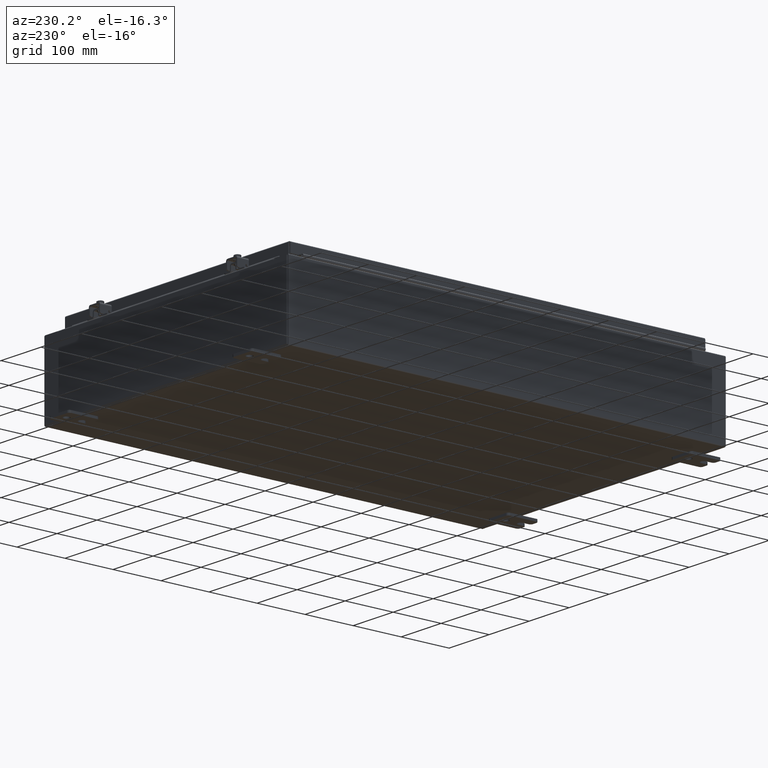
[diagram: clean part render]
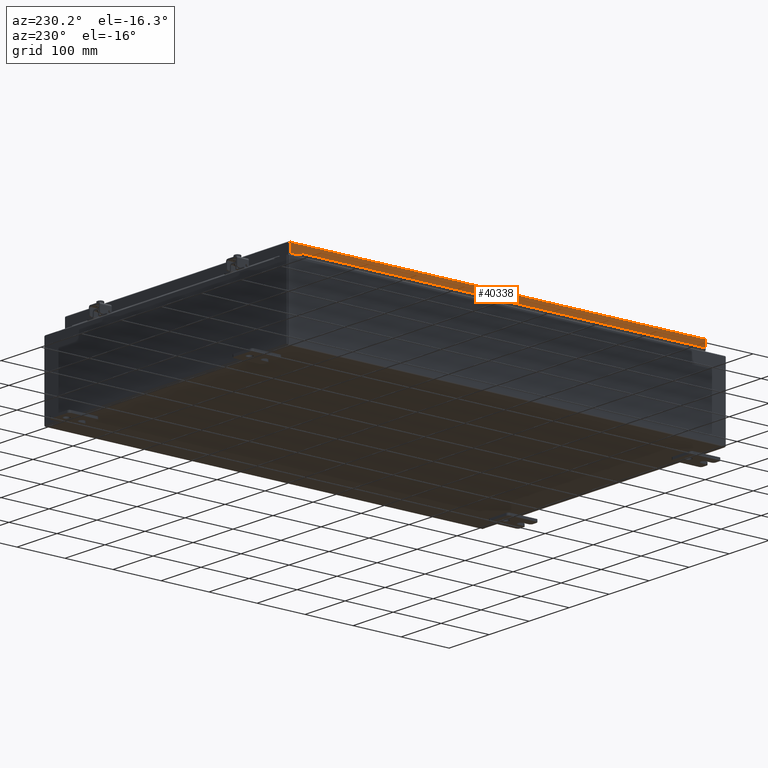
[diagram: same view with one face highlighted and labeled with its STEP entity id]
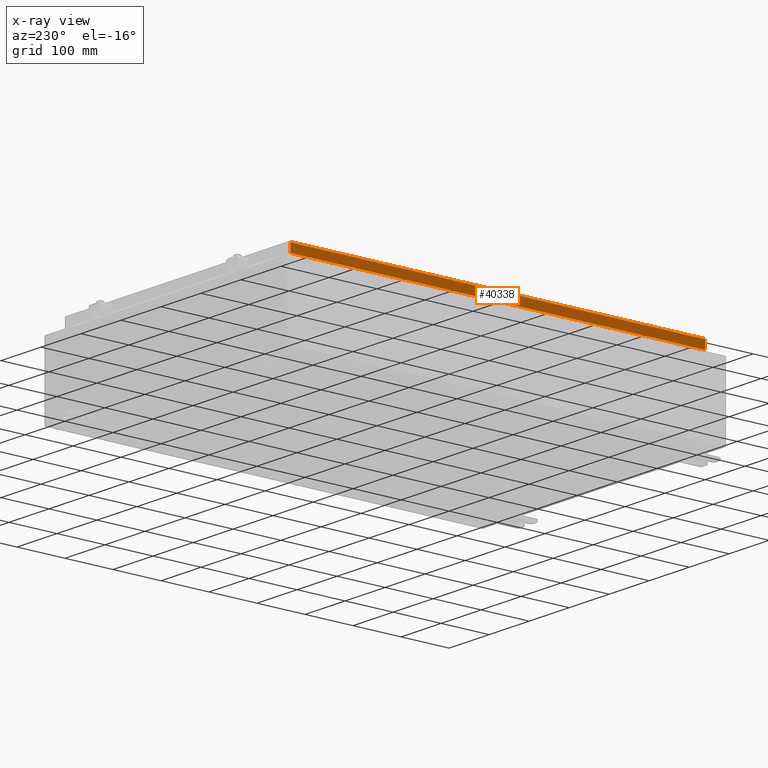
[diagram: x-ray of the same camera — body ghosted, the highlighted face saturated]
A machine part, auxiliary view. The second image highlights one B-rep face of the part: STEP entity #40338.
The next image is the same camera in x-ray: the body ghosted, the highlighted face saturated — about 0% of this face is hidden behind the body in this view.
In plain terms, the highlighted planar face has unit normal (1, 0, -0).
Its self-contained STEP definition (entity closure, byte-faithful):
#4329 = EDGE_LOOP ( 'NONE', ( #15953, #36017, #31881, #40890 ) ) ;
#5559 = CARTESIAN_POINT ( 'NONE',  ( -11.07800000000000500, 17.00515786437628000, -0.7949999999999954900 ) ) ;
#7487 = LINE ( 'NONE', #7562, #11106 ) ;
#7562 = CARTESIAN_POINT ( 'NONE',  ( -11.07800000000000500, -17.09399999999999800, -0.7949999999999997100 ) ) ;
#8585 = DIRECTION ( 'NONE',  ( 1.000000000000000000, 6.392530697705110700E-017, -3.034122441942816500E-015 ) ) ;
#9575 = CARTESIAN_POINT ( 'NONE',  ( -11.07800000000000500, 17.00515786437627600, -0.08770000000000223500 ) ) ;
#10830 = VERTEX_POINT ( 'NONE', #32130 ) ;
#11106 = VECTOR ( 'NONE', #14926, 39.37007874015748100 ) ;
#11646 = VECTOR ( 'NONE', #28402, 39.37007874015748100 ) ;
#11759 = AXIS2_PLACEMENT_3D ( 'NONE', #14911, #8585, #31492 ) ;
#12005 = EDGE_CURVE ( 'NONE', #13583, #39362, #7487, .T. ) ;
#12641 = LINE ( 'NONE', #24972, #11646 ) ;
#13583 = VERTEX_POINT ( 'NONE', #38765 ) ;
#14182 = VECTOR ( 'NONE', #42228, 39.37007874015748100 ) ;
#14911 = CARTESIAN_POINT ( 'NONE',  ( -11.07800000000000300, -7.081645506917722700E-016, 3.387282206785411200E-014 ) ) ;
#14926 = DIRECTION ( 'NONE',  ( -6.392530697705073700E-017, 1.000000000000000000, 1.238552822680358100E-016 ) ) ;
#15953 = ORIENTED_EDGE ( 'NONE', *, *, #41223, .F. ) ;
#18280 = VECTOR ( 'NONE', #23204, 39.37007874015748100 ) ;
#19002 = CARTESIAN_POINT ( 'NONE',  ( -11.07800000000000300, 17.00515786437627600, 1.526192047629567600E-013 ) ) ;
#20853 = VERTEX_POINT ( 'NONE', #9575 ) ;
#23204 = DIRECTION ( 'NONE',  ( -3.034122441942816500E-015, 6.982962677686265900E-015, -1.000000000000000000 ) ) ;
#24752 = PLANE ( 'NONE',  #11759 ) ;
#24972 = CARTESIAN_POINT ( 'NONE',  ( -11.07800000000000300, -17.09399999999999800, -0.08770000000000004200 ) ) ;
#28402 = DIRECTION ( 'NONE',  ( 6.392530697705130400E-017, -1.000000000000000000, 6.392530697705074900E-017 ) ) ;
#29186 = EDGE_CURVE ( 'NONE', #10830, #13583, #35896, .T. ) ;
#30511 = CARTESIAN_POINT ( 'NONE',  ( -11.07800000000000300, -17.00515786437626500, -0.07469999999999976700 ) ) ;
#30652 = LINE ( 'NONE', #19002, #14182 ) ;
#31492 = DIRECTION ( 'NONE',  ( -3.034122441942816500E-015, 0.0000000000000000000, -1.000000000000000000 ) ) ;
#31881 = ORIENTED_EDGE ( 'NONE', *, *, #12005, .F. ) ;
#32130 = CARTESIAN_POINT ( 'NONE',  ( -11.07800000000000300, -17.00515786437626200, -0.08770000000000115200 ) ) ;
#35830 = FACE_OUTER_BOUND ( 'NONE', #4329, .T. ) ;
#35896 = LINE ( 'NONE', #30511, #18280 ) ;
#36017 = ORIENTED_EDGE ( 'NONE', *, *, #40439, .T. ) ;
#38765 = CARTESIAN_POINT ( 'NONE',  ( -11.07800000000000500, -17.00515786437626200, -0.7949999999999996000 ) ) ;
#39362 = VERTEX_POINT ( 'NONE', #5559 ) ;
#40338 = ADVANCED_FACE ( 'NONE', ( #35830 ), #24752, .F. ) ;
#40439 = EDGE_CURVE ( 'NONE', #20853, #39362, #30652, .T. ) ;
#40890 = ORIENTED_EDGE ( 'NONE', *, *, #29186, .F. ) ;
#41223 = EDGE_CURVE ( 'NONE', #20853, #10830, #12641, .T. ) ;
#42228 = DIRECTION ( 'NONE',  ( -3.034122441942816500E-015, 6.982962677686265900E-015, -1.000000000000000000 ) ) ;